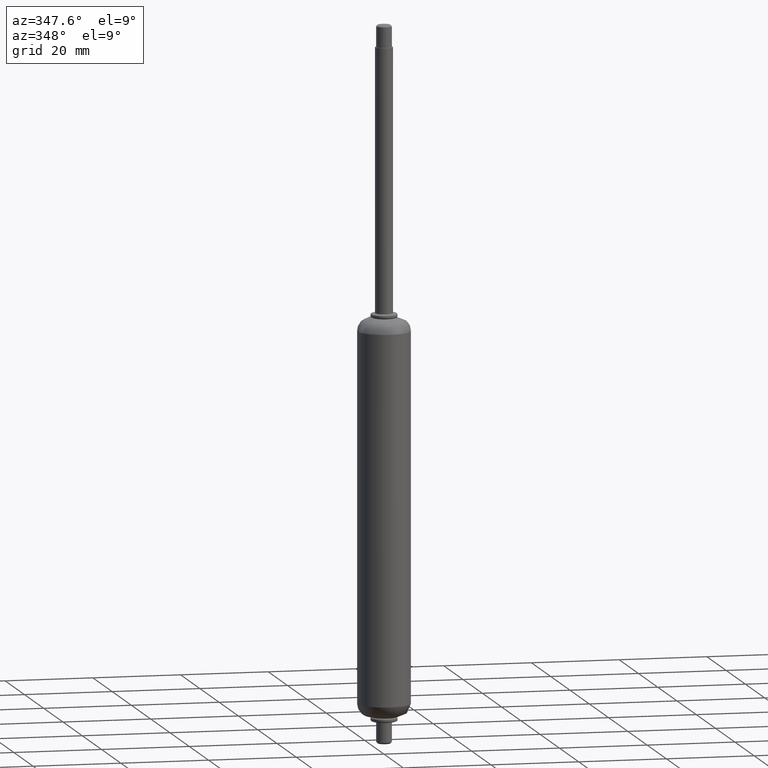
[diagram: clean part render]
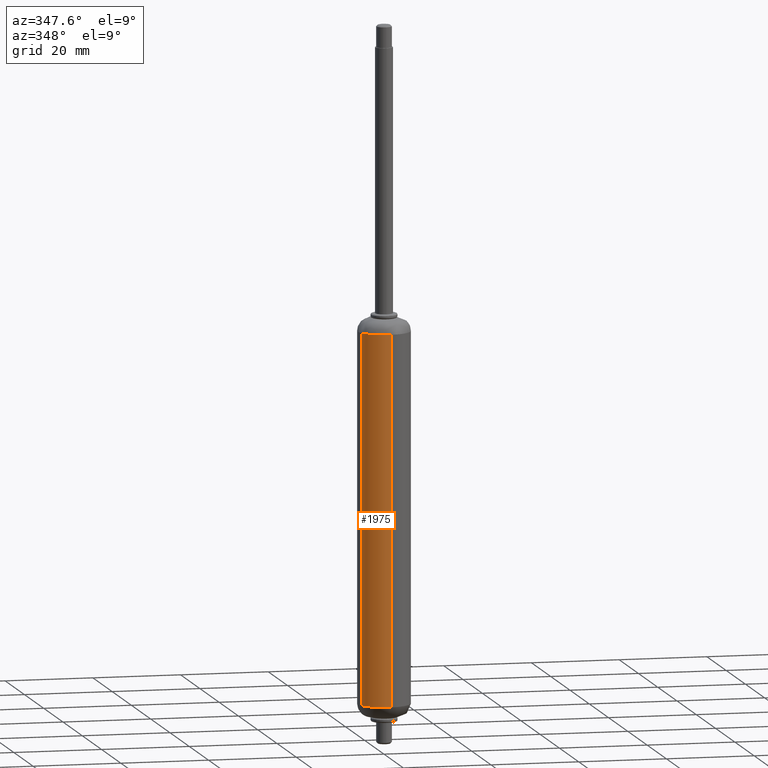
[diagram: same view with one face highlighted and labeled with its STEP entity id]
A machine part, auxiliary view. The second image highlights one B-rep face of the part: STEP entity #1975.
In plain terms, the highlighted face is a freeform B-spline surface patch.
Its self-contained STEP definition (entity closure, byte-faithful):
#1786=CARTESIAN_POINT('',(-5.616861472640773,-2.109707846397987,-87.000004000000004));
#1787=VERTEX_POINT('',#1786);
#1803=CARTESIAN_POINT('',(-5.616861472640773,-2.109707846397987,-2.999999999999997));
#1804=VERTEX_POINT('',#1803);
#1805=CARTESIAN_POINT('',(-5.616861472640773,-2.109707846397987,-2.999999999999997));
#1806=CARTESIAN_POINT('',(-5.616861472640773,-2.109707846397987,-87.000004000000004));
#1807=QUASI_UNIFORM_CURVE('',1,(#1805,#1806),.UNSPECIFIED.,.F.,.U.);
#1808=EDGE_CURVE('',#1804,#1787,#1807,.T.);
#1857=CARTESIAN_POINT('',(0.366291237578963,-5.988808790507914,-2.999999999999997));
#1858=VERTEX_POINT('',#1857);
#1872=CARTESIAN_POINT('',(0.366291237578961,-5.988808790507914,-87.000003999999990));
#1873=VERTEX_POINT('',#1872);
#1874=CARTESIAN_POINT('',(0.366291237578963,-5.988808790507914,-2.999999999999997));
#1875=CARTESIAN_POINT('',(0.366291237578961,-5.988808790507914,-87.000003999999990));
#1876=QUASI_UNIFORM_CURVE('',1,(#1874,#1875),.UNSPECIFIED.,.F.,.U.);
#1877=EDGE_CURVE('',#1858,#1873,#1876,.T.);
#1927=CARTESIAN_POINT('',(0.366291237209303,-5.988808790530522,-0.899999899999991));
#1928=CARTESIAN_POINT('',(-4.058217490817729,-6.259423337215339,-0.899999899999991));
#1929=CARTESIAN_POINT('',(-5.616861472659100,-2.109707846349191,-0.899999899999991));
#1930=CARTESIAN_POINT('',(0.366291237209303,-5.988808790530522,-89.152504102500288));
#1931=CARTESIAN_POINT('',(-4.058217490817729,-6.259423337215339,-89.152504102500288));
#1932=CARTESIAN_POINT('',(-5.616861472659100,-2.109707846349191,-89.152504102500288));
#1940=(BOUNDED_SURFACE()B_SPLINE_SURFACE(2,1,((#1927,#1930),(#1928,#1931),(#1929,#1932)),.UNSPECIFIED.,.F.,.F.,.U.)B_SPLINE_SURFACE_WITH_KNOTS((3,3),(2,2),(0.0,7.898692343318982),(0.0,88.252504202500290),.UNSPECIFIED.)GEOMETRIC_REPRESENTATION_ITEM()RATIONAL_B_SPLINE_SURFACE(((1.0,1.0),(0.765685424949238,0.765685424949238),(0.906274169979695,0.906274169979695)))REPRESENTATION_ITEM('')SURFACE());
#1941=CARTESIAN_POINT('',(0.366291237578961,-5.988808790507914,-87.000003999999990));
#1942=CARTESIAN_POINT('',(0.183316580162411,-5.999999999999321,-87.000004000000004));
#1943=CARTESIAN_POINT('',(2.060574E-013,-5.999999999999321,-87.000004000000004));
#1944=CARTESIAN_POINT('',(-4.155657574088703,-5.999999999999321,-87.000004000000004));
#1945=CARTESIAN_POINT('',(-5.616861472640773,-2.109707846397988,-87.000004000000018));
#1953=(BOUNDED_CURVE()B_SPLINE_CURVE(2,(#1941,#1942,#1943,#1944,#1945),.UNSPECIFIED.,.F.,.U.)B_SPLINE_CURVE_WITH_KNOTS((3,2,3),(0.739332962220668,0.750000000000000,0.940284170896165),.UNSPECIFIED.)CURVE()GEOMETRIC_REPRESENTATION_ITEM()RATIONAL_B_SPLINE_CURVE((0.976072041627550,0.987502787878426,1.0,0.777068226787893,0.893499554632407))REPRESENTATION_ITEM(''));
#1954=EDGE_CURVE('',#1873,#1787,#1953,.T.);
#1955=ORIENTED_EDGE('',*,*,#1954,.F.);
#1956=ORIENTED_EDGE('',*,*,#1877,.F.);
#1957=CARTESIAN_POINT('',(0.366291237578963,-5.988808790507914,-2.999999999999997));
#1958=CARTESIAN_POINT('',(0.183316580162413,-5.999999999999321,-3.000000000000000));
#1959=CARTESIAN_POINT('',(2.060574E-013,-5.999999999999321,-3.0));
#1960=CARTESIAN_POINT('',(-4.155657574088701,-5.999999999999320,-2.999999999999999));
#1961=CARTESIAN_POINT('',(-5.616861472640773,-2.109707846397987,-2.999999999999996));
#1969=(BOUNDED_CURVE()B_SPLINE_CURVE(2,(#1957,#1958,#1959,#1960,#1961),.UNSPECIFIED.,.F.,.U.)B_SPLINE_CURVE_WITH_KNOTS((3,2,3),(0.739332962220667,0.750000000000000,0.940284170896165),.UNSPECIFIED.)CURVE()GEOMETRIC_REPRESENTATION_ITEM()RATIONAL_B_SPLINE_CURVE((0.976072041627550,0.987502787878426,1.0,0.777068226787893,0.893499554632407))REPRESENTATION_ITEM(''));
#1970=EDGE_CURVE('',#1858,#1804,#1969,.T.);
#1971=ORIENTED_EDGE('',*,*,#1970,.T.);
#1972=ORIENTED_EDGE('',*,*,#1808,.T.);
#1973=EDGE_LOOP('',(#1955,#1956,#1971,#1972));
#1974=FACE_OUTER_BOUND('',#1973,.T.);
#1975=ADVANCED_FACE('',(#1974),#1940,.T.);